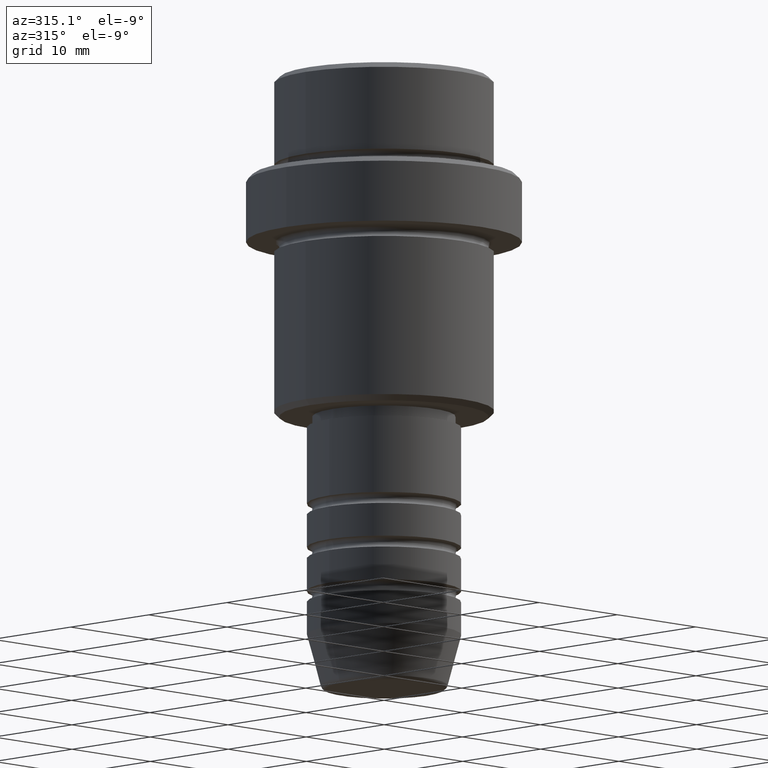
[diagram: clean part render]
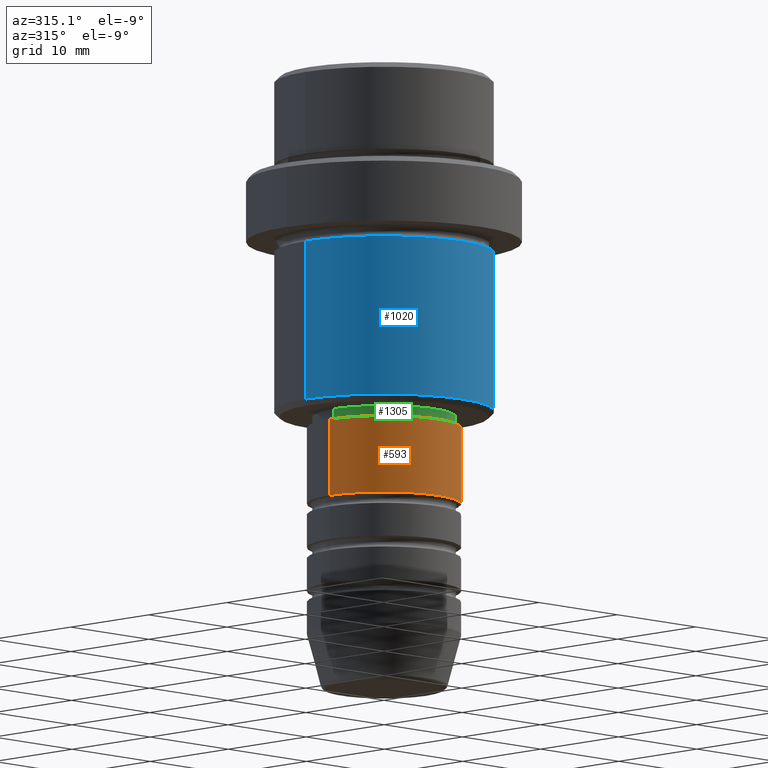
[diagram: same view with three faces highlighted in distinct colors, each labeled with its STEP entity id]
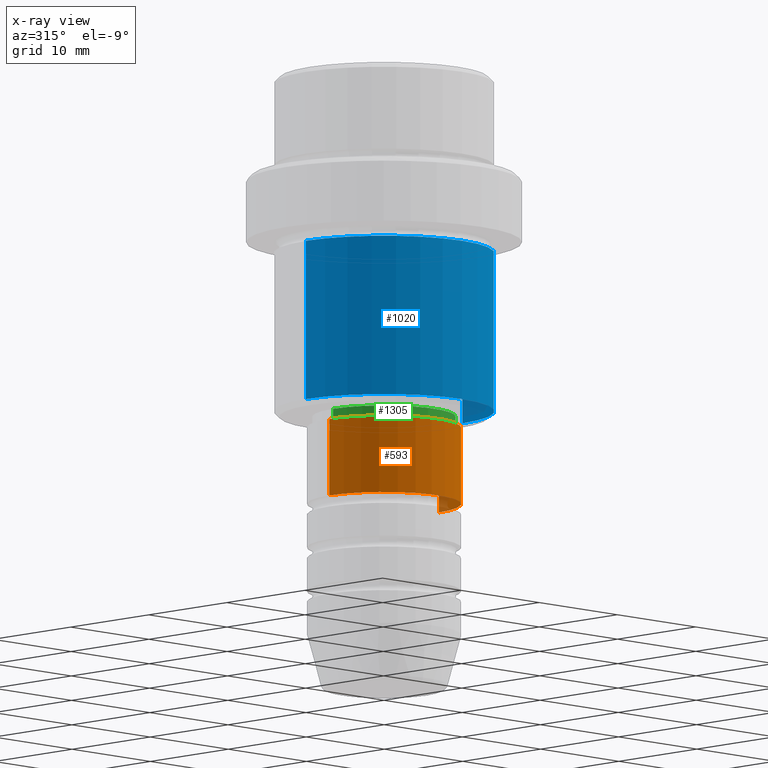
[diagram: x-ray of the same camera — body ghosted, the three highlighted faces saturated]
A machine part, auxiliary view with three faces highlighted in distinct colors.
The next image is the same camera in x-ray (body ghosted, the three faces saturated) — at least one of them is partly hidden behind the body in this view.
Their STEP definitions:

[orange] entity #593 — the highlighted cylindrical surface (partial cylindrical patch) has radius 7 mm, axis along (-0, -0, 1).
#2 = VERTEX_POINT ( 'NONE', #623 ) ;
#27 = DIRECTION ( 'NONE',  ( -0.000000000000000000, -0.000000000000000000, 1.000000000000000000 ) ) ;
#35 = CARTESIAN_POINT ( 'NONE',  ( -7.000000000000000000, 8.572527594031473190E-16, 0.000000000000000000 ) ) ;
#41 = VERTEX_POINT ( 'NONE', #845 ) ;
#70 = CYLINDRICAL_SURFACE ( 'NONE', #123, 7.000000000000000000 ) ;
#123 = AXIS2_PLACEMENT_3D ( 'NONE', #1275, #949, #308 ) ;
#135 = EDGE_CURVE ( 'NONE', #2, #679, #878, .T. ) ;
#187 = CIRCLE ( 'NONE', #306, 7.000000000000000000 ) ;
#196 = EDGE_LOOP ( 'NONE', ( #1102, #1165, #478, #1018 ) ) ;
#248 = DIRECTION ( 'NONE',  ( -0.000000000000000000, -0.000000000000000000, 1.000000000000000000 ) ) ;
#304 = DIRECTION ( 'NONE',  ( 1.000000000000000000, 0.000000000000000000, 0.000000000000000000 ) ) ;
#306 = AXIS2_PLACEMENT_3D ( 'NONE', #1251, #27, #366 ) ;
#308 = DIRECTION ( 'NONE',  ( 1.000000000000000000, 0.000000000000000000, 0.000000000000000000 ) ) ;
#321 = EDGE_CURVE ( 'NONE', #41, #1027, #187, .T. ) ;
#366 = DIRECTION ( 'NONE',  ( 1.000000000000000000, 0.000000000000000000, 0.000000000000000000 ) ) ;
#437 = EDGE_CURVE ( 'NONE', #679, #1027, #471, .T. ) ;
#446 = CARTESIAN_POINT ( 'NONE',  ( 7.000000000000000000, 0.000000000000000000, -38.99999999999988631 ) ) ;
#471 = LINE ( 'NONE', #573, #848 ) ;
#478 = ORIENTED_EDGE ( 'NONE', *, *, #437, .T. ) ;
#513 = CARTESIAN_POINT ( 'NONE',  ( 0.000000000000000000, 0.000000000000000000, -38.99999999999988631 ) ) ;
#573 = CARTESIAN_POINT ( 'NONE',  ( 7.000000000000000000, 0.000000000000000000, 0.000000000000000000 ) ) ;
#593 = ADVANCED_FACE ( 'NONE', ( #1042 ), #70, .T. ) ;
#623 = CARTESIAN_POINT ( 'NONE',  ( -7.000000000000000000, 8.572527594031473190E-16, -38.99999999999988631 ) ) ;
#679 = VERTEX_POINT ( 'NONE', #446 ) ;
#710 = VECTOR ( 'NONE', #1351, 1000.000000000000000 ) ;
#818 = LINE ( 'NONE', #35, #710 ) ;
#845 = CARTESIAN_POINT ( 'NONE',  ( -7.000000000000000000, 8.572527594031473190E-16, -32.00000000000000000 ) ) ;
#848 = VECTOR ( 'NONE', #248, 1000.000000000000000 ) ;
#878 = CIRCLE ( 'NONE', #1246, 7.000000000000000000 ) ;
#937 = DIRECTION ( 'NONE',  ( -0.000000000000000000, -0.000000000000000000, 1.000000000000000000 ) ) ;
#949 = DIRECTION ( 'NONE',  ( -0.000000000000000000, -0.000000000000000000, 1.000000000000000000 ) ) ;
#1018 = ORIENTED_EDGE ( 'NONE', *, *, #321, .F. ) ;
#1027 = VERTEX_POINT ( 'NONE', #1091 ) ;
#1042 = FACE_OUTER_BOUND ( 'NONE', #196, .T. ) ;
#1091 = CARTESIAN_POINT ( 'NONE',  ( 7.000000000000000000, 0.000000000000000000, -32.00000000000000000 ) ) ;
#1102 = ORIENTED_EDGE ( 'NONE', *, *, #1212, .F. ) ;
#1165 = ORIENTED_EDGE ( 'NONE', *, *, #135, .T. ) ;
#1212 = EDGE_CURVE ( 'NONE', #2, #41, #818, .T. ) ;
#1246 = AXIS2_PLACEMENT_3D ( 'NONE', #513, #937, #304 ) ;
#1251 = CARTESIAN_POINT ( 'NONE',  ( 0.000000000000000000, 0.000000000000000000, -32.00000000000000000 ) ) ;
#1275 = CARTESIAN_POINT ( 'NONE',  ( 0.000000000000000000, 0.000000000000000000, 0.000000000000000000 ) ) ;
#1351 = DIRECTION ( 'NONE',  ( -0.000000000000000000, -0.000000000000000000, 1.000000000000000000 ) ) ;

[blue] entity #1020 — the highlighted cylindrical surface (partial cylindrical patch) has radius 10 mm, axis along (-0, -0, 1).
#6 = CARTESIAN_POINT ( 'NONE',  ( 0.000000000000000000, 0.000000000000000000, 0.000000000000000000 ) ) ;
#56 = LINE ( 'NONE', #176, #1345 ) ;
#95 = VERTEX_POINT ( 'NONE', #603 ) ;
#121 = ORIENTED_EDGE ( 'NONE', *, *, #1414, .F. ) ;
#176 = CARTESIAN_POINT ( 'NONE',  ( 10.00000000000000000, 0.000000000000000000, 0.000000000000000000 ) ) ;
#252 = VECTOR ( 'NONE', #382, 1000.000000000000000 ) ;
#258 = ORIENTED_EDGE ( 'NONE', *, *, #1359, .T. ) ;
#319 = CARTESIAN_POINT ( 'NONE',  ( 0.000000000000000000, 0.000000000000000000, -30.50000000000001421 ) ) ;
#381 = CARTESIAN_POINT ( 'NONE',  ( -10.00000000000000000, 1.224646799147353256E-15, -30.50000000000001421 ) ) ;
#382 = DIRECTION ( 'NONE',  ( -0.000000000000000000, -0.000000000000000000, 1.000000000000000000 ) ) ;
#407 = DIRECTION ( 'NONE',  ( 1.000000000000000000, 0.000000000000000000, 0.000000000000000000 ) ) ;
#410 = DIRECTION ( 'NONE',  ( -0.000000000000000000, -0.000000000000000000, 1.000000000000000000 ) ) ;
#499 = EDGE_CURVE ( 'NONE', #1065, #1087, #56, .T. ) ;
#521 = CYLINDRICAL_SURFACE ( 'NONE', #903, 10.00000000000000000 ) ;
#523 = EDGE_CURVE ( 'NONE', #986, #95, #954, .T. ) ;
#594 = CARTESIAN_POINT ( 'NONE',  ( -10.00000000000000000, 1.224646799147353256E-15, 0.000000000000000000 ) ) ;
#603 = CARTESIAN_POINT ( 'NONE',  ( -10.00000000000000000, 1.224646799147353256E-15, -16.00000000000000000 ) ) ;
#613 = DIRECTION ( 'NONE',  ( -0.000000000000000000, -0.000000000000000000, 1.000000000000000000 ) ) ;
#647 = CARTESIAN_POINT ( 'NONE',  ( 10.00000000000000000, 0.000000000000000000, -16.00000000000000000 ) ) ;
#827 = AXIS2_PLACEMENT_3D ( 'NONE', #1072, #1281, #958 ) ;
#903 = AXIS2_PLACEMENT_3D ( 'NONE', #6, #1295, #407 ) ;
#929 = AXIS2_PLACEMENT_3D ( 'NONE', #319, #410, #1068 ) ;
#954 = LINE ( 'NONE', #594, #252 ) ;
#958 = DIRECTION ( 'NONE',  ( 1.000000000000000000, 0.000000000000000000, 0.000000000000000000 ) ) ;
#986 = VERTEX_POINT ( 'NONE', #381 ) ;
#1004 = EDGE_LOOP ( 'NONE', ( #1090, #258, #1220, #121 ) ) ;
#1020 = ADVANCED_FACE ( 'NONE', ( #1052 ), #521, .T. ) ;
#1040 = CIRCLE ( 'NONE', #827, 10.00000000000000000 ) ;
#1052 = FACE_OUTER_BOUND ( 'NONE', #1004, .T. ) ;
#1065 = VERTEX_POINT ( 'NONE', #1393 ) ;
#1068 = DIRECTION ( 'NONE',  ( -1.000000000000000000, 0.000000000000000000, 0.000000000000000000 ) ) ;
#1072 = CARTESIAN_POINT ( 'NONE',  ( 0.000000000000000000, 0.000000000000000000, -16.00000000000000000 ) ) ;
#1087 = VERTEX_POINT ( 'NONE', #647 ) ;
#1090 = ORIENTED_EDGE ( 'NONE', *, *, #523, .F. ) ;
#1220 = ORIENTED_EDGE ( 'NONE', *, *, #499, .T. ) ;
#1281 = DIRECTION ( 'NONE',  ( -0.000000000000000000, -0.000000000000000000, 1.000000000000000000 ) ) ;
#1295 = DIRECTION ( 'NONE',  ( -0.000000000000000000, -0.000000000000000000, 1.000000000000000000 ) ) ;
#1345 = VECTOR ( 'NONE', #613, 1000.000000000000000 ) ;
#1359 = EDGE_CURVE ( 'NONE', #986, #1065, #1406, .T. ) ;
#1393 = CARTESIAN_POINT ( 'NONE',  ( 10.00000000000000000, 0.000000000000000000, -30.50000000000001421 ) ) ;
#1406 = CIRCLE ( 'NONE', #929, 10.00000000000000000 ) ;
#1414 = EDGE_CURVE ( 'NONE', #95, #1087, #1040, .T. ) ;

[green] entity #1305 — the highlighted cylindrical surface (partial cylindrical patch) has radius 6.5 mm, axis along (-0, -0, 1).
#81 = AXIS2_PLACEMENT_3D ( 'NONE', #489, #302, #1388 ) ;
#101 = VERTEX_POINT ( 'NONE', #165 ) ;
#165 = CARTESIAN_POINT ( 'NONE',  ( -6.499999999999994671, 7.960204194457788574E-16, -32.00000000000000000 ) ) ;
#224 = CARTESIAN_POINT ( 'NONE',  ( -6.499999999999994671, 7.960204194457788574E-16, 0.000000000000000000 ) ) ;
#231 = ORIENTED_EDGE ( 'NONE', *, *, #506, .T. ) ;
#257 = DIRECTION ( 'NONE',  ( 1.000000000000000000, 0.000000000000000000, 0.000000000000000000 ) ) ;
#302 = DIRECTION ( 'NONE',  ( -0.000000000000000000, -0.000000000000000000, 1.000000000000000000 ) ) ;
#318 = ORIENTED_EDGE ( 'NONE', *, *, #829, .F. ) ;
#368 = CARTESIAN_POINT ( 'NONE',  ( 0.000000000000000000, 0.000000000000000000, -31.00000000000000000 ) ) ;
#445 = EDGE_LOOP ( 'NONE', ( #1097, #231, #520, #318 ) ) ;
#489 = CARTESIAN_POINT ( 'NONE',  ( 0.000000000000000000, 0.000000000000000000, -32.00000000000000000 ) ) ;
#491 = CYLINDRICAL_SURFACE ( 'NONE', #511, 6.499999999999994671 ) ;
#506 = EDGE_CURVE ( 'NONE', #101, #547, #1120, .T. ) ;
#511 = AXIS2_PLACEMENT_3D ( 'NONE', #1346, #692, #257 ) ;
#520 = ORIENTED_EDGE ( 'NONE', *, *, #643, .T. ) ;
#529 = CARTESIAN_POINT ( 'NONE',  ( 6.499999999999994671, 0.000000000000000000, 0.000000000000000000 ) ) ;
#547 = VERTEX_POINT ( 'NONE', #622 ) ;
#622 = CARTESIAN_POINT ( 'NONE',  ( 6.499999999999994671, 0.000000000000000000, -32.00000000000000000 ) ) ;
#634 = LINE ( 'NONE', #529, #1319 ) ;
#643 = EDGE_CURVE ( 'NONE', #547, #791, #634, .T. ) ;
#648 = DIRECTION ( 'NONE',  ( -0.000000000000000000, -0.000000000000000000, 1.000000000000000000 ) ) ;
#692 = DIRECTION ( 'NONE',  ( -0.000000000000000000, -0.000000000000000000, 1.000000000000000000 ) ) ;
#712 = EDGE_CURVE ( 'NONE', #101, #1112, #760, .T. ) ;
#734 = VECTOR ( 'NONE', #648, 1000.000000000000000 ) ;
#760 = LINE ( 'NONE', #224, #734 ) ;
#769 = DIRECTION ( 'NONE',  ( -0.000000000000000000, -0.000000000000000000, 1.000000000000000000 ) ) ;
#791 = VERTEX_POINT ( 'NONE', #1335 ) ;
#829 = EDGE_CURVE ( 'NONE', #1112, #791, #1037, .T. ) ;
#1014 = AXIS2_PLACEMENT_3D ( 'NONE', #368, #769, #1221 ) ;
#1037 = CIRCLE ( 'NONE', #1014, 6.499999999999994671 ) ;
#1097 = ORIENTED_EDGE ( 'NONE', *, *, #712, .F. ) ;
#1112 = VERTEX_POINT ( 'NONE', #1200 ) ;
#1120 = CIRCLE ( 'NONE', #81, 6.499999999999994671 ) ;
#1200 = CARTESIAN_POINT ( 'NONE',  ( -6.499999999999994671, 7.960204194457788574E-16, -31.00000000000000000 ) ) ;
#1201 = DIRECTION ( 'NONE',  ( -0.000000000000000000, -0.000000000000000000, 1.000000000000000000 ) ) ;
#1221 = DIRECTION ( 'NONE',  ( 1.000000000000000000, 0.000000000000000000, 0.000000000000000000 ) ) ;
#1240 = FACE_OUTER_BOUND ( 'NONE', #445, .T. ) ;
#1305 = ADVANCED_FACE ( 'NONE', ( #1240 ), #491, .T. ) ;
#1319 = VECTOR ( 'NONE', #1201, 1000.000000000000000 ) ;
#1335 = CARTESIAN_POINT ( 'NONE',  ( 6.499999999999994671, 0.000000000000000000, -31.00000000000000000 ) ) ;
#1346 = CARTESIAN_POINT ( 'NONE',  ( 0.000000000000000000, 0.000000000000000000, 0.000000000000000000 ) ) ;
#1388 = DIRECTION ( 'NONE',  ( 1.000000000000000000, 0.000000000000000000, 0.000000000000000000 ) ) ;